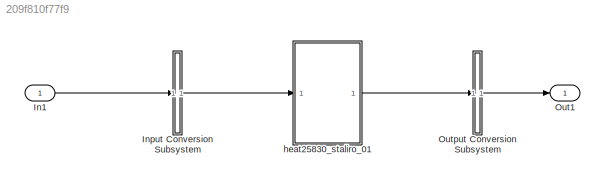
MODEL slx_209f810f77f9
KIND model
CONFIG AbsTol = 1e-5
CONFIG EnableMultiTasking = on
CONFIG FixedStep = 0.05
CONFIG MaxStep = auto
CONFIG MinStep = auto
CONFIG RelTol = 1e-5
CONFIG SampleTimeConstraint = Unconstrained
CONFIG Solver = FixedStepAuto
CONFIG SolverName = FixedStepAuto
CONFIG StartTime = 0.0
CONFIG StopTime = 50
BLOCK [Inport] In1
  IconDisplay = Port number
  OutDataTypeStr = double
  PortDimensions = [1]
  SampleTime = 0
  SignalType = real
  VarSizeSig = No
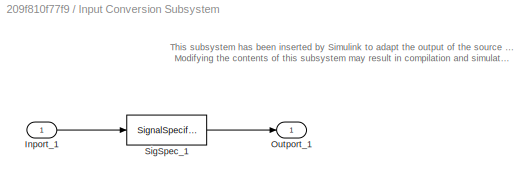
BLOCK [SubSystem] Input Conversion Subsystem
  AttributesFormatString = %<Description>
  Description = Signal spec.\nand routing
  Permissions = ReadOnly
  PermitHierarchicalResolution = ExplicitOnly
  Ports = [1, 1]
  RequestExecContextInheritance = off
  Tag = __SLT_ICS__
  UserDataPersistent = on
BLOCK [Inport] Input Conversion Subsystem/Inport_1
  IconDisplay = Port number
BLOCK [Outport] Input Conversion Subsystem/Outport_1
  IconDisplay = Port number
BLOCK [SignalSpecification] Input Conversion Subsystem/SigSpec_1
  Dimensions = [1]
  OutDataTypeStr = double
  SampleTime = [0, 0]
  SignalType = real
  VarSizeSig = No
BLOCK [Outport] Out1
  IconDisplay = Port number
  OutDataTypeStr = double
  PortDimensions = [10]
  SignalType = real
  VarSizeSig = No
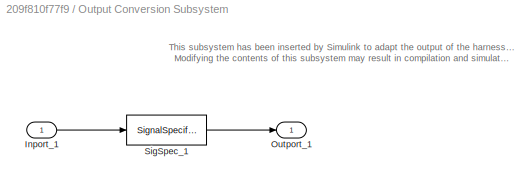
BLOCK [SubSystem] Output Conversion Subsystem
  AttributesFormatString = %<Description>
  Description = Signal spec.\nand routing
  Permissions = ReadOnly
  PermitHierarchicalResolution = ExplicitOnly
  Ports = [1, 1]
  RequestExecContextInheritance = off
  Tag = __SLT_OCS__
  UserDataPersistent = on
BLOCK [Inport] Output Conversion Subsystem/Inport_1
  IconDisplay = Port number
BLOCK [Outport] Output Conversion Subsystem/Outport_1
  IconDisplay = Port number
BLOCK [SignalSpecification] Output Conversion Subsystem/SigSpec_1
  Dimensions = [10]
  OutDataTypeStr = double
  SignalType = real
  VarSizeSig = No
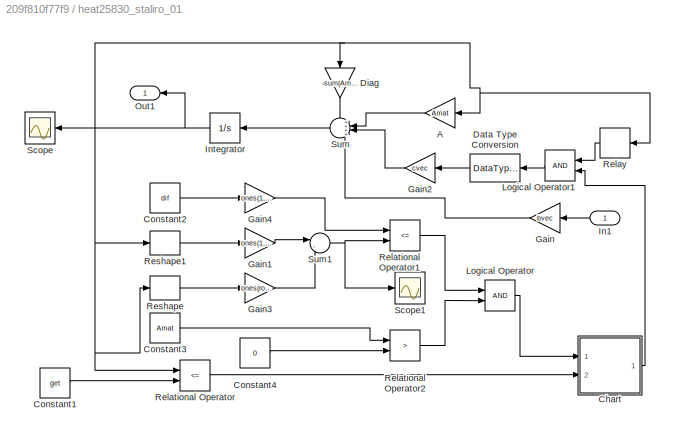
BLOCK [SubSystem] heat25830_staliro_01
  Ports = [1, 1]
  RequestExecContextInheritance = off
  TreatAsAtomicUnit = on
BLOCK [Gain] heat25830_staliro_01/A
  Gain = Amat
  Multiplication = Matrix(K*u)
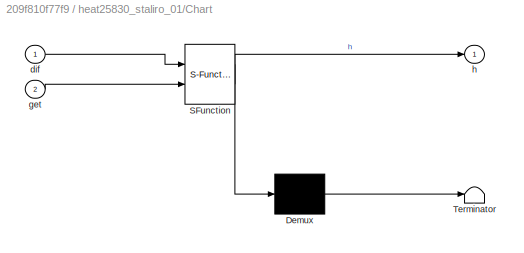
BLOCK [SubSystem] heat25830_staliro_01/Chart
  ErrorFcn = Stateflow.Translate.translate
  PermitHierarchicalResolution = ExplicitOnly
  Ports = [2, 1]
  RequestExecContextInheritance = off
  SFBlockType = Chart
  TreatAsAtomicUnit = on
BLOCK [Demux] heat25830_staliro_01/Chart/ Demux 
  Outputs = 1
  Ports = [1, 1]
BLOCK [S-Function] heat25830_staliro_01/Chart/ SFunction 
  EnableBusSupport = on
  FunctionName = sf_sfun
  Parameters = h,rooms
  PortCounts = [2 2]
  Ports = [2, 2]
  SFcnIsStateOwnerBlock = off
  SFunctionDeploymentMode = off
  Tag = Stateflow S-Function heat25830_staliro_01_Harness1_replacement 1
BLOCK [Terminator] heat25830_staliro_01/Chart/ Terminator 
BLOCK [Inport] heat25830_staliro_01/Chart/dif
  IconDisplay = Port number
BLOCK [Inport] heat25830_staliro_01/Chart/get
  IconDisplay = Port number
  Port = 2
BLOCK [Outport] heat25830_staliro_01/Chart/h
  IconDisplay = Port number
BLOCK [Constant] heat25830_staliro_01/Constant1
  Value = get
BLOCK [Constant] heat25830_staliro_01/Constant2
  Value = dif
BLOCK [Constant] heat25830_staliro_01/Constant3
  Value = Amat
  VectorParams1D = off
BLOCK [Constant] heat25830_staliro_01/Constant4
  Value = 0
BLOCK [DataTypeConversion] heat25830_staliro_01/Data Type Conversion
  OutDataTypeStr = double
BLOCK [Gain] heat25830_staliro_01/Diag
  Gain = -sum(Amat')'-bvec
BLOCK [Gain] heat25830_staliro_01/Gain
  Gain = bvec
BLOCK [Gain] heat25830_staliro_01/Gain1
  Gain = ones(1,rooms)
  Multiplication = Matrix(u*K)
BLOCK [Gain] heat25830_staliro_01/Gain2
  Gain = cvec
BLOCK [Gain] heat25830_staliro_01/Gain3
  Gain = ones(rooms,1)
  Multiplication = Matrix(K*u)
BLOCK [Gain] heat25830_staliro_01/Gain4
  Gain = ones(1,rooms)
  Multiplication = Matrix(u*K)
BLOCK [Inport] heat25830_staliro_01/In1
  IconDisplay = Port number
  OutDataTypeStr = double
  PortDimensions = 1
  SampleTime = [0,0]
  SamplingMode = Sample based
  SignalType = real
BLOCK [Integrator] heat25830_staliro_01/Integrator
  InitialCondition = xinit
  Ports = [1, 1]
BLOCK [Logic] heat25830_staliro_01/Logical Operator
  AllPortsSameDT = off
  Ports = [2, 1]
BLOCK [Logic] heat25830_staliro_01/Logical Operator1
  AllPortsSameDT = off
  Ports = [2, 1]
BLOCK [Outport] heat25830_staliro_01/Out1
  IconDisplay = Port number
  OutDataTypeStr = double
  PortDimensions = 10
  SampleTime = [0,0]
  SamplingMode = Sample based
  SignalType = real
BLOCK [RelationalOperator] heat25830_staliro_01/Relational Operator
  InputSameDT = off
  Operator = <=
  OutDataTypeStr = boolean
  Ports = [2, 1]
BLOCK [RelationalOperator] heat25830_staliro_01/Relational Operator1
  InputSameDT = off
  Operator = <=
  OutDataTypeStr = boolean
  Ports = [2, 1]
BLOCK [RelationalOperator] heat25830_staliro_01/Relational Operator2
  InputSameDT = off
  Operator = >
  OutDataTypeStr = boolean
  Ports = [2, 1]
BLOCK [Relay] heat25830_staliro_01/Relay
  OffOutputValue = 1
  OffSwitchValue = on
  OnOutputValue = 0
  OnSwitchValue = off
BLOCK [Reshape] heat25830_staliro_01/Reshape
  OutputDimensionality = Row vector (2-D)
  Ports = [1, 1]
BLOCK [Reshape] heat25830_staliro_01/Reshape1
  OutputDimensionality = Column vector (2-D)
  Ports = [1, 1]
BLOCK [Scope] heat25830_staliro_01/Scope
  Floating = off
  NumInputPorts = 1
  Ports = [1]
  ScopeSpecificationString = Simulink.scopes.TimeScopeBlockCfg('CurrentConfiguration', extmgr.ConfigurationSet(extmgr.Configuration('Core','General UI',true),extmgr.Configuration('Core','Source UI',true),extmgr.Configuration('Sources','WiredSimulink',true,'DataLoggingSaveFormat','StructureWithTime','DataLoggingDecimation','1','DataLoggingDecimateData',true,'DataLoggingVariableName','ScopeData1'),extmgr.Configuration('Visuals'...<+1602ch>
BLOCK [Scope] heat25830_staliro_01/Scope1
  Floating = off
  NumInputPorts = 1
  Ports = [1]
  ScopeSpecificationString = Simulink.scopes.TimeScopeBlockCfg('CurrentConfiguration', extmgr.ConfigurationSet(extmgr.Configuration('Core','General UI',true),extmgr.Configuration('Core','Source UI',true),extmgr.Configuration('Sources','WiredSimulink',true,'DataLoggingSaveFormat','StructureWithTime','DataLoggingLimitDataPoints',true,'DataLoggingDecimation','1','DataLoggingDecimateData',true),extmgr.Configuration('Visuals','Tim...<+1598ch>
BLOCK [Sum] heat25830_staliro_01/Sum
  IconShape = round
  InputSameDT = off
  Inputs = ++++
  OutDataTypeStr = Inherit: Inherit via internal rule
  Ports = [4, 1]
BLOCK [Sum] heat25830_staliro_01/Sum1
  IconShape = round
  InputSameDT = off
  Inputs = |-+
  OutDataTypeStr = Inherit: Inherit via internal rule
  Ports = [2, 1]
ANNOTATION Input Conversion Subsystem: This subsystem has been inserted by Simulink to adapt the output of the source blocks to the interface required by the harnessed component. Modifying the contents of this subsystem may result in compilation and simulation failure.
ANNOTATION Output Conversion Subsystem: This subsystem has been inserted by Simulink to adapt the output of the harnessed component to the interface required by the sink blocks. Modifying the contents of this subsystem may result in compilation and simulation failure.
LINE In1:1 -> Input Conversion Subsystem:1
LINE Input Conversion Subsystem/Inport_1:1 -> Input Conversion Subsystem/SigSpec_1:1
LINE Input Conversion Subsystem/SigSpec_1:1 -> Input Conversion Subsystem/Outport_1:1
LINE Input Conversion Subsystem:1 -> heat25830_staliro_01:1
LINE Output Conversion Subsystem/Inport_1:1 -> Output Conversion Subsystem/SigSpec_1:1
LINE Output Conversion Subsystem/SigSpec_1:1 -> Output Conversion Subsystem/Outport_1:1
LINE Output Conversion Subsystem:1 -> Out1:1
LINE heat25830_staliro_01/A:1 -> heat25830_staliro_01/Sum:2
LINE heat25830_staliro_01/Chart:1 -> heat25830_staliro_01/Logical Operator1:2
LINE heat25830_staliro_01/Constant1:1 -> heat25830_staliro_01/Relational Operator:2
LINE heat25830_staliro_01/Constant2:1 -> heat25830_staliro_01/Gain4:1
LINE heat25830_staliro_01/Constant3:1 -> heat25830_staliro_01/Relational Operator2:1
LINE heat25830_staliro_01/Constant4:1 -> heat25830_staliro_01/Relational Operator2:2
LINE heat25830_staliro_01/Data Type Conversion:1 -> heat25830_staliro_01/Gain2:1
LINE heat25830_staliro_01/Diag:1 -> heat25830_staliro_01/Sum:1
LINE heat25830_staliro_01/Gain1:1 -> heat25830_staliro_01/Sum1:1
LINE heat25830_staliro_01/Gain2:1 -> heat25830_staliro_01/Sum:3
LINE heat25830_staliro_01/Gain3:1 -> heat25830_staliro_01/Sum1:2
LINE heat25830_staliro_01/Gain4:1 -> heat25830_staliro_01/Relational Operator1:1
LINE heat25830_staliro_01/Gain:1 -> heat25830_staliro_01/Sum:4
LINE heat25830_staliro_01/In1:1 -> heat25830_staliro_01/Gain:1
NET heat25830_staliro_01/Integrator:1 -> heat25830_staliro_01/A:1, heat25830_staliro_01/Diag:1, heat25830_staliro_01/Out1:1, heat25830_staliro_01/Relational Operator:1, heat25830_staliro_01/Relay:1, heat25830_staliro_01/Reshape1:1, heat25830_staliro_01/Reshape:1, heat25830_staliro_01/Scope:1
LINE heat25830_staliro_01/Logical Operator1:1 -> heat25830_staliro_01/Data Type Conversion:1
LINE heat25830_staliro_01/Logical Operator:1 -> heat25830_staliro_01/Chart:1
LINE heat25830_staliro_01/Relational Operator1:1 -> heat25830_staliro_01/Logical Operator:1
LINE heat25830_staliro_01/Relational Operator2:1 -> heat25830_staliro_01/Logical Operator:2
LINE heat25830_staliro_01/Relational Operator:1 -> heat25830_staliro_01/Chart:2
LINE heat25830_staliro_01/Relay:1 -> heat25830_staliro_01/Logical Operator1:1
LINE heat25830_staliro_01/Reshape1:1 -> heat25830_staliro_01/Gain1:1
LINE heat25830_staliro_01/Reshape:1 -> heat25830_staliro_01/Gain3:1
NET heat25830_staliro_01/Sum1:1 -> heat25830_staliro_01/Relational Operator1:2, heat25830_staliro_01/Scope1:1
LINE heat25830_staliro_01/Sum:1 -> heat25830_staliro_01/Integrator:1
LINE heat25830_staliro_01:1 -> Output Conversion Subsystem:1
note: NET lines group one-source signal fan-out (src -> all destinations, sorted); 1:1 wires keep LINE
CHART heat25830_staliro_01/Chart states=1 transitions=18
  STATE_LABEL 'main'
  STATE_LABEL '[id2<rooms]'
  STATE_LABEL '[id1<rooms]'
  STATE_LABEL '[get[id1]&!h[id1]]'
  STATE_LABEL '[dif[id1][id2]&h[id2]]'
  STATE_LABEL '{id2=0;}'
  STATE_LABEL '{id2++;}'
  STATE_LABEL '{h[id1]=1;h[id2]=0;}'
  STATE_LABEL '{id1=0;id2=0;}'
  STATE_LABEL '{id1++;}'
